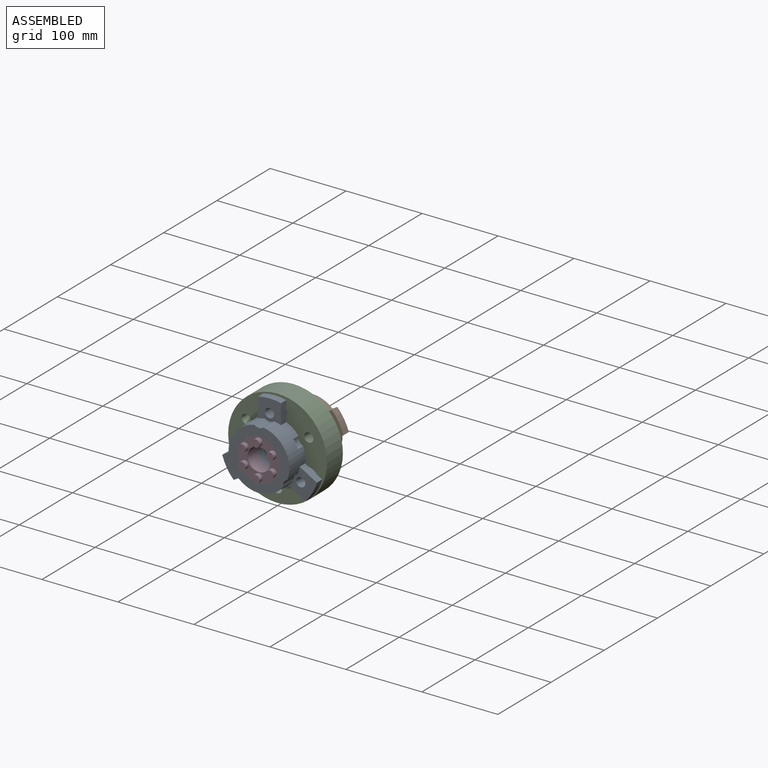
[diagram: assembled view]
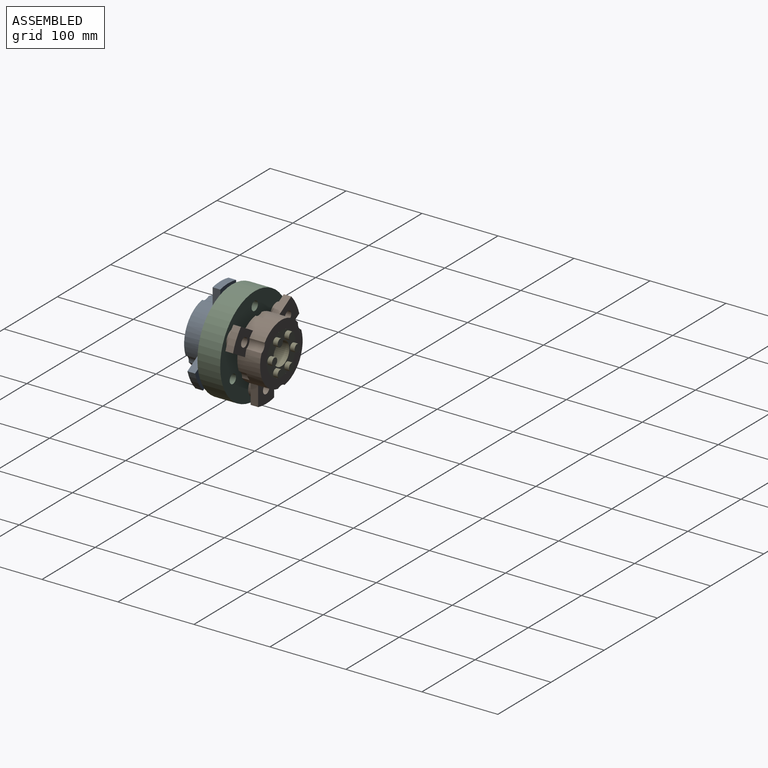
[diagram: assembled view, second angle]
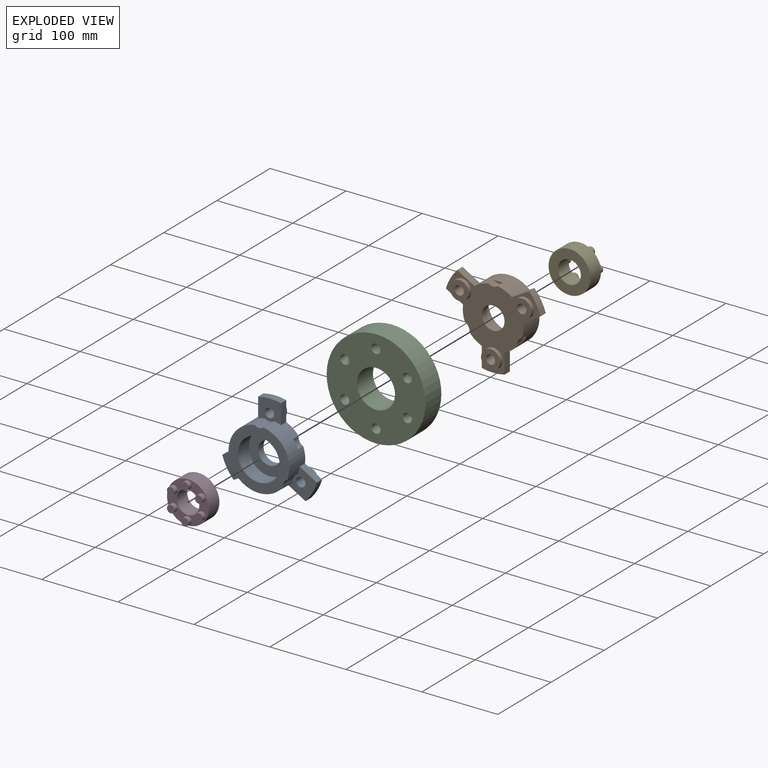
[diagram: exploded view]
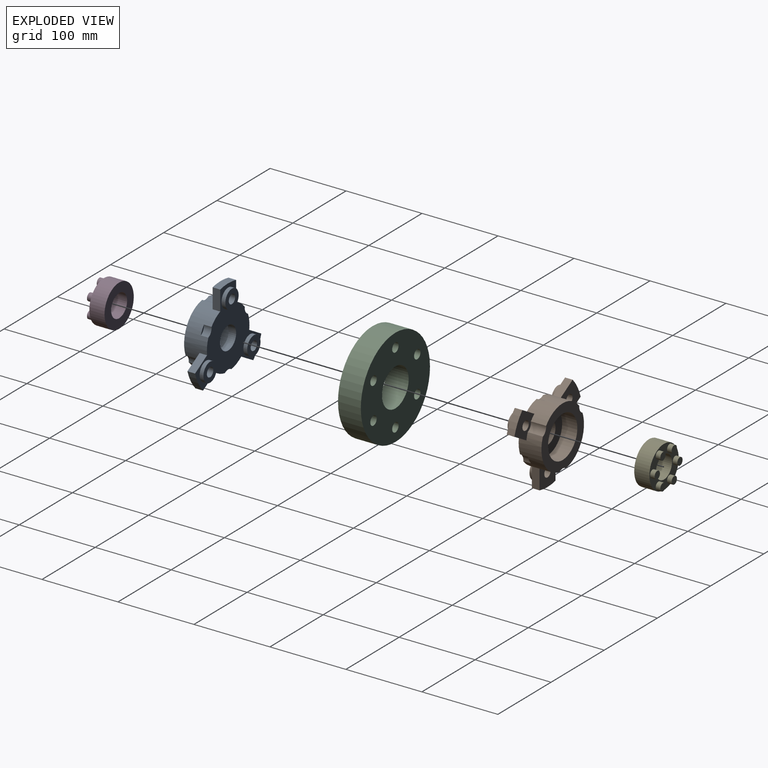
[diagram: exploded view, second angle]
ASSEMBLY  parts=5 mates=4
PART A: 38 faces, bbox 35x124.5x109.6 mm
  f0: plane 124.54x109.61mm, normal (-1,0,0), area 5069.3mm2, adj f2,f3,f4,f6,f8,f11,f14,f17
  f1: plane 80x79.54mm, normal (1,0,0), area 2589.1mm2, adj f2,f3,f13,f14,f29,f30,f31
  f2: cylinder r=40mm len=54.07mm, axis (1,0,0), area 1841.2mm2, adj f0,f1,f7,f15,f17,f18,f30,f31
  f3: cylinder r=40mm len=62.43mm, axis (1,0,0), area 1841.2mm2, adj f0,f1,f5,f15,f21,f22,f29,f30
  f4: cylinder r=65mm len=25.98mm, axis (1,0,0), area 302.7mm2, adj f0,f15,f18,f21
  f5: plane 39.06x37.66mm, normal (1,0,0), area 668.8mm2, adj f3,f6,f10,f14,f19,f22,f29
  f6: cylinder r=65mm len=25.98mm, axis (1,0,0), area 302.7mm2, adj f0,f5,f19,f22
  f7: plane 30x27.92mm, normal (1,0,0), area 668.8mm2, adj f2,f8,f14,f16,f17,f20,f31
  f8: cylinder r=65mm len=30mm, axis (1,0,0), area 302.7mm2, adj f0,f7,f17,f20
  f9: cylinder r=6mm len=15mm, axis (-1,0,0), area 565.5mm2, adj f15,f28
  f10: cylinder r=6mm len=15mm, axis (-1,0,0), area 565.5mm2, adj f5,f26
  f11: cylinder r=15mm len=30mm, axis (1,0,0), area 942.5mm2, adj f0,f12
  f12: plane 55x55mm, normal (1,0,0), area 1669mm2, adj f11,f13
  f13: cylinder r=27.5mm len=55mm, axis (1,0,0), area 3455.8mm2, adj f1,f12
  f14: cylinder r=40mm len=54.07mm, axis (1,0,0), area 1841.2mm2, adj f0,f1,f5,f7,f19,f20,f29,f31
  f15: plane 39.06x37.66mm, normal (1,0,0), area 668.8mm2, adj f2,f3,f4,f9,f18,f21,f30
  f16: cylinder r=6mm len=15mm, axis (-1,0,0), area 565.5mm2, adj f7,f24
  f17: plane 26.16x10mm, normal (0,-1,0), area 261.6mm2, adj f0,f2,f7,f8
  f18: plane 22.66x13.08mm, normal (0,-0.5,0.87), area 261.6mm2, adj f0,f2,f4,f15
  f19: plane 22.66x13.08mm, normal (0,0.5,0.87), area 261.6mm2, adj f0,f5,f6,f14
  f20: plane 26.16x10mm, normal (0,1,0), area 261.6mm2, adj f0,f7,f8,f14
  f21: plane 22.66x13.08mm, normal (0,0.5,-0.87), area 261.6mm2, adj f0,f3,f4,f15
  f22: plane 22.66x13.08mm, normal (0,-0.5,-0.87), area 261.6mm2, adj f0,f3,f5,f6
  f23: cylinder r=12.5mm len=25mm, axis (1,0,0), area 392.7mm2, adj f0,f24
  f24: plane 25x25mm, normal (-1,0,0), area 377.8mm2, adj f16,f23
  f25: cylinder r=12.5mm len=25mm, axis (1,0,0), area 392.7mm2, adj f0,f26
  f26: plane 25x25mm, normal (-1,0,0), area 377.8mm2, adj f10,f25
  f27: cylinder r=12.5mm len=25mm, axis (1,0,0), area 392.7mm2, adj f0,f28
  f28: plane 25x25mm, normal (-1,0,0), area 377.8mm2, adj f9,f27
  f29: cylinder r=10mm len=20mm, axis (1,0,0), area 260mm2, adj f1,f3,f5,f14
  f30: cylinder r=10mm len=20mm, axis (1,0,0), area 260mm2, adj f1,f2,f3,f15
  f31: cylinder r=10mm len=20mm, axis (1,0,0), area 260mm2, adj f1,f2,f7,f14
  f32: plane 12.1x2.5mm, normal (-1,0,0), area 20.5mm2, adj f3,f33
  f33: cylinder r=10mm len=12.1mm, axis (-1,0,0), area 130mm2, adj f0,f3,f32
  f34: cylinder r=10mm len=10.48mm, axis (-1,0,0), area 130mm2, adj f0,f2,f35
  f35: plane 10.48x6.13mm, normal (-1,0,0), area 20.5mm2, adj f2,f34
  f36: cylinder r=10mm len=10.48mm, axis (-1,0,0), area 130mm2, adj f0,f14,f37
  f37: plane 10.48x6.13mm, normal (-1,0,0), area 20.5mm2, adj f14,f36
PART B: same geometry as A
PART C: 10 faces, bbox 130x30x130 mm
  f0: cylinder r=6mm len=30mm, axis (0,-1,0), area 1131mm2, adj f7,f8
  f1: cylinder r=6mm len=30mm, axis (0,-1,0), area 1131mm2, adj f7,f8
  f2: cylinder r=6mm len=30mm, axis (0,-1,0), area 1131mm2, adj f7,f8
  f3: cylinder r=6mm len=30mm, axis (0,-1,0), area 1131mm2, adj f7,f8
  f4: cylinder r=6mm len=30mm, axis (0,-1,0), area 1131mm2, adj f7,f8
  f5: cylinder r=25mm len=50mm, axis (0,1,0), area 4712.4mm2, adj f7,f8
  f6: cylinder r=65mm len=130mm, axis (0,1,0), area 12252.2mm2, adj f7,f8
  f7: plane 130x130mm, normal (0,-1,0), area 10631.1mm2, adj f0,f1,f2,f3,f4,f5,f6,f9
  f8: plane 130x130mm, normal (0,1,0), area 10631.1mm2, adj f0,f1,f2,f3,f4,f5,f6,f9
  f9: cylinder r=6mm len=30mm, axis (0,-1,0), area 1131mm2, adj f7,f8
PART D: 16 faces, bbox 55x26x55 mm
  f0: cylinder r=5mm len=10mm, axis (0,1,0), area 188.5mm2, adj f1,f12
  f1: plane 10x10mm, normal (0,-1,0), area 78.5mm2, adj f0
  f2: cylinder r=5mm len=10mm, axis (0,1,0), area 188.5mm2, adj f3,f12
  f3: plane 10x10mm, normal (0,-1,0), area 78.5mm2, adj f2
  f4: cylinder r=5mm len=10mm, axis (0,1,0), area 188.5mm2, adj f5,f12
  f5: plane 10x10mm, normal (0,-1,0), area 78.5mm2, adj f4
  f6: cylinder r=5mm len=10mm, axis (0,1,0), area 188.5mm2, adj f7,f12
  f7: plane 10x10mm, normal (0,-1,0), area 78.5mm2, adj f6
  f8: cylinder r=5mm len=10mm, axis (0,1,0), area 188.5mm2, adj f9,f12
  f9: plane 10x10mm, normal (0,-1,0), area 78.5mm2, adj f8
  f10: cylinder r=15mm len=30mm, axis (0,1,0), area 1885mm2, adj f12,f13
  f11: cylinder r=27.5mm len=55mm, axis (0,1,0), area 3455.8mm2, adj f12,f13
  f12: plane 55x55mm, normal (0,-1,0), area 1197.7mm2, adj f0,f2,f4,f6,f8,f10,f11,f14
  f13: plane 55x55mm, normal (0,1,0), area 1669mm2, adj f10,f11
  f14: cylinder r=5mm len=10mm, axis (0,1,0), area 188.5mm2, adj f12,f15
  f15: plane 10x10mm, normal (0,-1,0), area 78.5mm2, adj f14
PART E: same geometry as D
PLACE A rot(axis=(0,0,-1),90deg) t=(0,-5,0)mm
PLACE B rot(axis=(0.45,0.45,0.77),104.5deg) t=(0,35,0)mm
PLACE C t=(0,30,0)mm
PLACE D t=(0,-15,0)mm
PLACE E rot(axis=(0.26,0,-0.97),180deg) t=(0,45,0)mm
MATE revolute B.f16 <-> C.f0  axis (0,-1,0) through (41.14,30,23.75)mm
MATE fastened B.f2 <-> E.f11  axis (0,1,0) through (0,45,0)mm
MATE fastened A.f2 <-> D.f11  axis (0,-1,0) through (0,-15,0)mm
MATE fastened C.f5 <-> A.f2  axis (0,-1,0) through (0,0,0)mm
